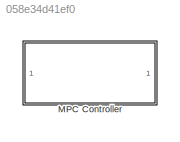
MODEL slx_058e34d41ef0
KIND library
CONFIG AbsTol = auto
CONFIG EnableMultiTasking = off
CONFIG FixedStep = auto
CONFIG MaxStep = auto
CONFIG MinStep = auto
CONFIG RelTol = 1e-3
CONFIG SampleTimeConstraint = Unconstrained
CONFIG SolverName = VariableStepAuto
CONFIG StartTime = 0.0
CONFIG StopTime = 10.0
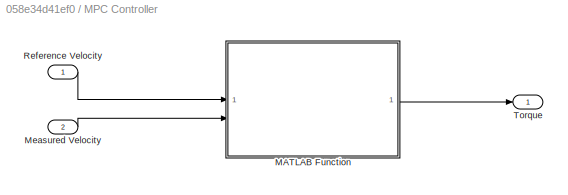
BLOCK [SubSystem] MPC Controller
  AncestorBlock = MultiModelToolbox/MPC Controller
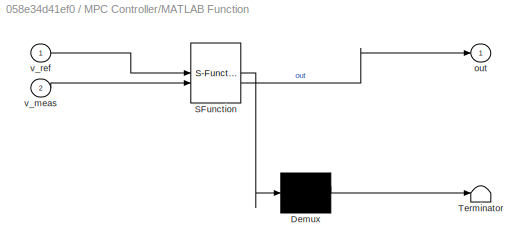
BLOCK [SubSystem] MPC Controller/MATLAB Function
  ErrorFcn = Stateflow.Translate.translate
  PermitHierarchicalResolution = ExplicitOnly
  SFBlockType = MATLAB Function
  SystemSampleTime = Ts
  TreatAsAtomicUnit = on
BLOCK [Demux] MPC Controller/MATLAB Function/ Demux 
  Outputs = 1
BLOCK [S-Function] MPC Controller/MATLAB Function/ SFunction 
  EnableBusSupport = off
  FunctionName = sf_sfun
  Parameters = prediction_horizon,stateSpace,torque_penalty,velocity_penalty
  PortCounts = [2 2]
  SFcnIsStateOwnerBlock = off
  SFunctionDeploymentMode = off
  Tag = Stateflow S-Function 4
BLOCK [Terminator] MPC Controller/MATLAB Function/ Terminator 
BLOCK [Outport] MPC Controller/MATLAB Function/out
BLOCK [Inport] MPC Controller/MATLAB Function/v_meas
  Port = 2
BLOCK [Inport] MPC Controller/MATLAB Function/v_ref
BLOCK [Inport] MPC Controller/Measured Velocity
  Port = 2
BLOCK [Inport] MPC Controller/Reference Velocity
BLOCK [Outport] MPC Controller/Torque
CHART MPC Controller/MATLAB Function states=1 transitions=1
  STATE_LABEL 'eML_blk_kernel()'
  STATE_LABEL "SCRIPT:\nfunction out = lmpc_step(v_ref, v_meas, stateSpace, velocity_penalty, prediction_horizon, torque_penalty)\n% LMPC_STEP  One-step linear MPC with condensed QP formulation.\n% Inputs:\n%   v_ref     : current reference velocity [m/s] (assumed constant over horizon)\n%   v_meas    : measured vehicle velocity [m/s]\n%\n   coder.extrinsic('mpcStep_mex');\n   out = zeros(1, 'like', v_ref); \n   out = mp...<+91ch>"
CHART  states=0 transitions=0
